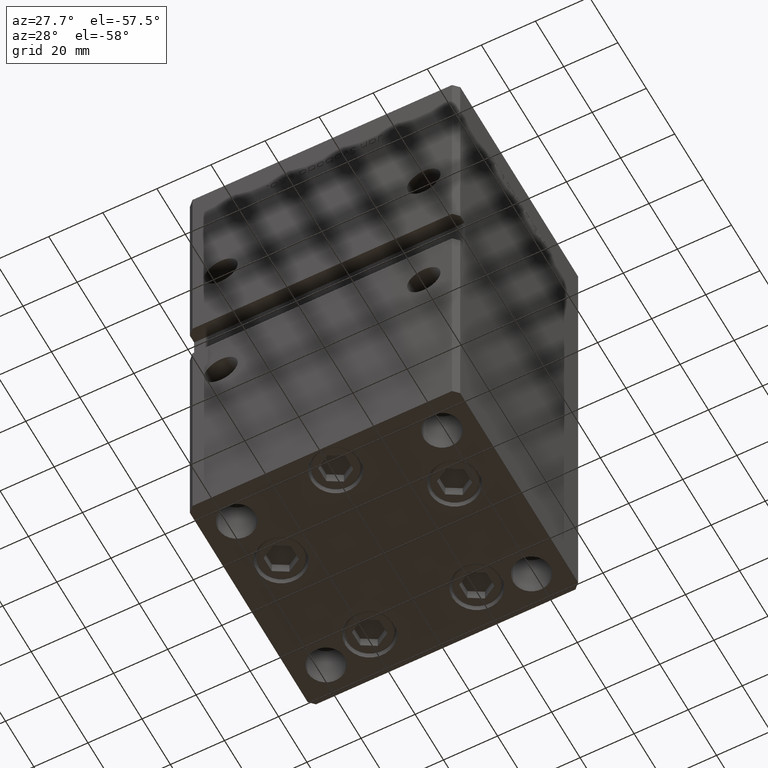
[diagram: clean part render]
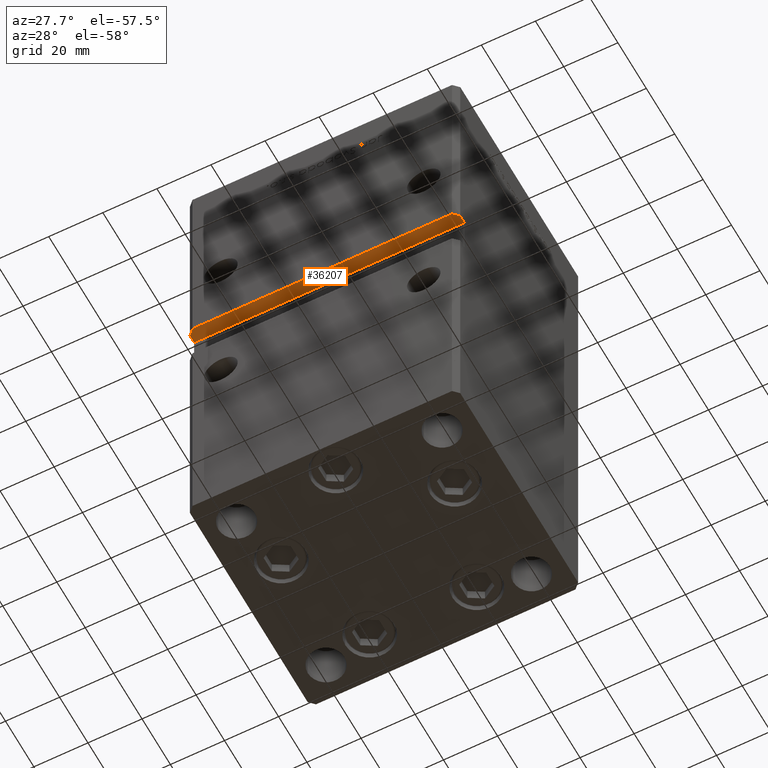
[diagram: same view with one face highlighted and labeled with its STEP entity id]
A machine part, auxiliary view. The second image highlights one B-rep face of the part: STEP entity #36207.
In plain terms, the highlighted planar face has unit normal (0, 0, 1).
Its self-contained STEP definition (entity closure, byte-faithful):
#502 = VERTEX_POINT ( 'NONE', #40568 ) ;
#1230 = CARTESIAN_POINT ( 'NONE',  ( -47.99999999999998579, -43.50000000000000000, 89.00000000000000000 ) ) ;
#1503 = VERTEX_POINT ( 'NONE', #1230 ) ;
#2825 = DIRECTION ( 'NONE',  ( -0.000000000000000000, -1.000000000000000000, -0.000000000000000000 ) ) ;
#5416 = VECTOR ( 'NONE', #46300, 1000.000000000000000 ) ;
#6049 = CARTESIAN_POINT ( 'NONE',  ( -49.99999999999998579, -43.50000000000000000, 89.00000000000000000 ) ) ;
#7641 = LINE ( 'NONE', #40763, #40581 ) ;
#8522 = EDGE_CURVE ( 'NONE', #15058, #502, #41991, .T. ) ;
#9320 = CARTESIAN_POINT ( 'NONE',  ( -49.99999999999998579, -38.50000000000000000, 89.00000000000000000 ) ) ;
#10472 = VECTOR ( 'NONE', #38629, 1000.000000000000000 ) ;
#11145 = VERTEX_POINT ( 'NONE', #47355 ) ;
#12173 = EDGE_CURVE ( 'NONE', #16274, #11145, #26871, .T. ) ;
#13075 = CARTESIAN_POINT ( 'NONE',  ( -49.99999999999998579, -38.50000000000000000, 89.00000000000000000 ) ) ;
#15058 = VERTEX_POINT ( 'NONE', #29471 ) ;
#16274 = VERTEX_POINT ( 'NONE', #19618 ) ;
#17901 = PLANE ( 'NONE',  #47991 ) ;
#18167 = DIRECTION ( 'NONE',  ( 1.000000000000000000, 0.000000000000000000, -0.000000000000000000 ) ) ;
#18229 = VECTOR ( 'NONE', #38473, 1000.000000000000114 ) ;
#18349 = EDGE_CURVE ( 'NONE', #32815, #16274, #51066, .T. ) ;
#19618 = CARTESIAN_POINT ( 'NONE',  ( -49.99999999999998579, -38.50000000000000000, 89.00000000000000000 ) ) ;
#20558 = ORIENTED_EDGE ( 'NONE', *, *, #52541, .T. ) ;
#21547 = CARTESIAN_POINT ( 'NONE',  ( 49.99999999999998579, -38.50000000000000000, 89.00000000000000000 ) ) ;
#22446 = CARTESIAN_POINT ( 'NONE',  ( -49.99999999999998579, -41.49999999999999289, 89.00000000000000000 ) ) ;
#26871 = LINE ( 'NONE', #43314, #5416 ) ;
#27772 = EDGE_LOOP ( 'NONE', ( #29430, #29541, #20558, #48335, #31166, #34886 ) ) ;
#29430 = ORIENTED_EDGE ( 'NONE', *, *, #12173, .F. ) ;
#29471 = CARTESIAN_POINT ( 'NONE',  ( 49.99999999999998579, -41.49999999999999289, 89.00000000000000000 ) ) ;
#29541 = ORIENTED_EDGE ( 'NONE', *, *, #18349, .F. ) ;
#30801 = DIRECTION ( 'NONE',  ( 0.7071067811865474617, -0.7071067811865474617, 0.000000000000000000 ) ) ;
#31166 = ORIENTED_EDGE ( 'NONE', *, *, #52373, .T. ) ;
#32815 = VERTEX_POINT ( 'NONE', #21547 ) ;
#33825 = FACE_OUTER_BOUND ( 'NONE', #27772, .T. ) ;
#34886 = ORIENTED_EDGE ( 'NONE', *, *, #44738, .F. ) ;
#36207 = ADVANCED_FACE ( 'NONE', ( #33825 ), #17901, .F. ) ;
#38393 = DIRECTION ( 'NONE',  ( -1.000000000000000000, -0.000000000000000000, -0.000000000000000000 ) ) ;
#38473 = DIRECTION ( 'NONE',  ( -0.7071067811865474617, -0.7071067811865474617, 0.000000000000000000 ) ) ;
#38629 = DIRECTION ( 'NONE',  ( -1.000000000000000000, -0.000000000000000000, -0.000000000000000000 ) ) ;
#38888 = LINE ( 'NONE', #22446, #52382 ) ;
#38894 = LINE ( 'NONE', #6049, #10472 ) ;
#40568 = CARTESIAN_POINT ( 'NONE',  ( 47.99999999999998579, -43.50000000000000000, 89.00000000000000000 ) ) ;
#40581 = VECTOR ( 'NONE', #2825, 1000.000000000000000 ) ;
#40763 = CARTESIAN_POINT ( 'NONE',  ( 49.99999999999998579, -38.50000000000000000, 89.00000000000000000 ) ) ;
#41913 = DIRECTION ( 'NONE',  ( 0.000000000000000000, 0.000000000000000000, 1.000000000000000000 ) ) ;
#41991 = LINE ( 'NONE', #51406, #18229 ) ;
#43314 = CARTESIAN_POINT ( 'NONE',  ( -49.99999999999998579, -38.50000000000000000, 89.00000000000000000 ) ) ;
#44738 = EDGE_CURVE ( 'NONE', #11145, #1503, #38888, .T. ) ;
#46300 = DIRECTION ( 'NONE',  ( -0.000000000000000000, -1.000000000000000000, -0.000000000000000000 ) ) ;
#47355 = CARTESIAN_POINT ( 'NONE',  ( -49.99999999999998579, -41.49999999999999289, 89.00000000000000000 ) ) ;
#47991 = AXIS2_PLACEMENT_3D ( 'NONE', #13075, #41913, #18167 ) ;
#48335 = ORIENTED_EDGE ( 'NONE', *, *, #8522, .T. ) ;
#48639 = VECTOR ( 'NONE', #38393, 1000.000000000000000 ) ;
#51066 = LINE ( 'NONE', #9320, #48639 ) ;
#51406 = CARTESIAN_POINT ( 'NONE',  ( 49.99999999999998579, -41.49999999999999289, 89.00000000000000000 ) ) ;
#52373 = EDGE_CURVE ( 'NONE', #502, #1503, #38894, .T. ) ;
#52382 = VECTOR ( 'NONE', #30801, 1000.000000000000114 ) ;
#52541 = EDGE_CURVE ( 'NONE', #32815, #15058, #7641, .T. ) ;